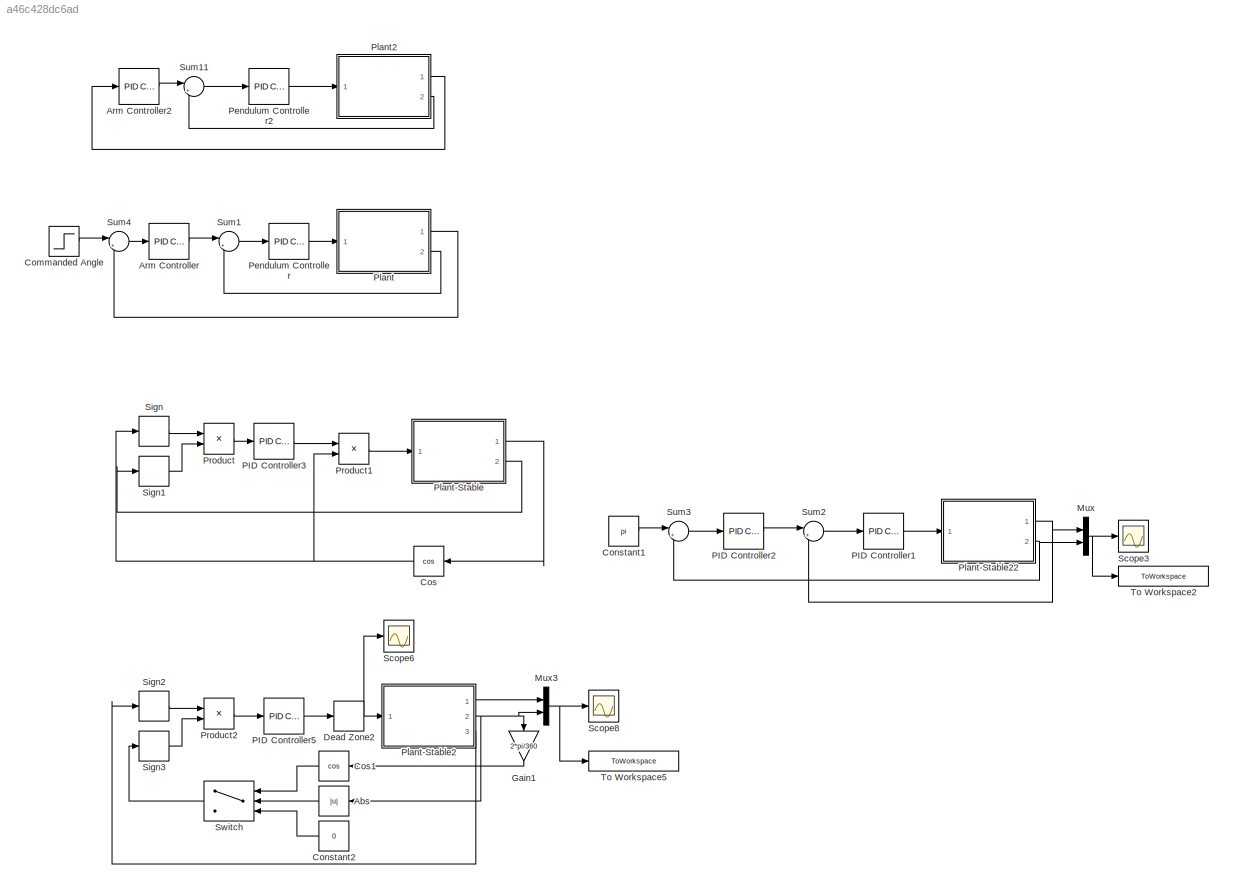
MODEL slx_a46c428dc6ad
KIND model
CONFIG AbsTol = auto
CONFIG EnableMultiTasking = off
CONFIG FixedStep = auto
CONFIG MaxStep = 0.03
CONFIG MinStep = auto
CONFIG RelTol = 1
CONFIG SampleTimeConstraint = Unconstrained
CONFIG SolverName = ode23
CONFIG StartTime = 0.0
CONFIG StopTime = 10
BLOCK [Abs] Abs
  SaturateOnIntegerOverflow = off
BLOCK [Reference] Arm Controller  REF=pid_lib/PID Controller
  Ports = [1, 1]
  SourceBlock = pid_lib/PID Controller
  SourceProductBaseCode = SL
  SourceType = PID 1dof
BLOCK [Reference] Arm Controller2  REF=pid_lib/PID Controller
  Ports = [1, 1]
  SourceBlock = pid_lib/PID Controller
  SourceProductBaseCode = SL
  SourceType = PID 1dof
BLOCK [Step] Commanded Angle
  SampleTime = 0
BLOCK [Constant] Constant1
  Value = pi
BLOCK [Constant] Constant2
  Value = 0
BLOCK [Trigonometry] Cos
  Operator = cos
  Ports = [1, 1]
BLOCK [Trigonometry] Cos1
  Operator = cos
  Ports = [1, 1]
BLOCK [DeadZone] Dead Zone2
  LowerValue = -2.2
  UpperValue = 2.2
BLOCK [Gain] Gain1
  Gain = 2*pi/360
  NameLocation = left
BLOCK [Mux] Mux
  DisplayOption = bar
  Inputs = 2
  Ports = [2, 1]
BLOCK [Mux] Mux3
  DisplayOption = bar
  Inputs = 2
  Ports = [2, 1]
BLOCK [Reference] PID Controller1  REF=pid_lib/PID Controller
  Ports = [1, 1]
  SourceBlock = pid_lib/PID Controller
  SourceProductBaseCode = SL
  SourceType = PID 1dof
BLOCK [Reference] PID Controller2  REF=pid_lib/PID Controller
  Ports = [1, 1]
  SourceBlock = pid_lib/PID Controller
  SourceProductBaseCode = SL
  SourceType = PID 1dof
BLOCK [Reference] PID Controller3  REF=pid_lib/PID Controller
  Ports = [1, 1]
  SourceBlock = pid_lib/PID Controller
  SourceProductBaseCode = SL
  SourceType = PID 1dof
BLOCK [Reference] PID Controller5  REF=pid_lib/PID Controller
  Ports = [1, 1]
  SourceBlock = pid_lib/PID Controller
  SourceProductBaseCode = SL
  SourceType = PID 1dof
BLOCK [Reference] Pendulum Controller  REF=pid_lib/PID Controller
  Ports = [1, 1]
  SourceBlock = pid_lib/PID Controller
  SourceProductBaseCode = SL
  SourceType = PID 1dof
BLOCK [Reference] Pendulum Controller2  REF=pid_lib/PID Controller
  Ports = [1, 1]
  SourceBlock = pid_lib/PID Controller
  SourceProductBaseCode = SL
  SourceType = PID 1dof
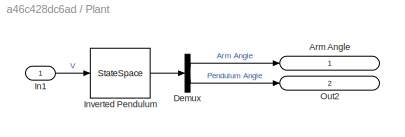
BLOCK [SubSystem] Plant
  Ports = [1, 2]
  RequestExecContextInheritance = off
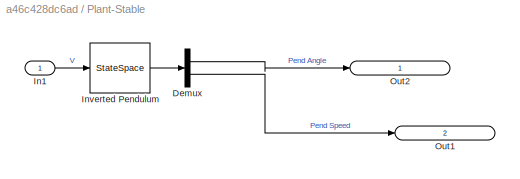
BLOCK [SubSystem] Plant-Stable
  Ports = [1, 2]
  RequestExecContextInheritance = off
BLOCK [Demux] Plant-Stable/Demux
  Outputs = 2
  Ports = [1, 2]
BLOCK [Inport] Plant-Stable/In1
  IconDisplay = Signal name
BLOCK [StateSpace] Plant-Stable/Inverted Pendulum
  A = A1
  B = B1
  C = C2
  D = D2
  InitialCondition = [0, 1, 0, 0]
  Ports = [1, 1]
BLOCK [Outport] Plant-Stable/Out1
  IconDisplay = Signal name
  Port = 2
BLOCK [Outport] Plant-Stable/Out2
  IconDisplay = Signal name
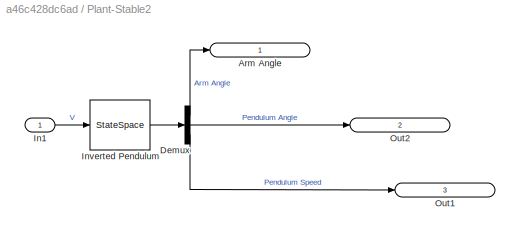
BLOCK [SubSystem] Plant-Stable2
  Ports = [1, 3]
  RequestExecContextInheritance = off
BLOCK [Outport] Plant-Stable2/Arm Angle
  IconDisplay = Signal name
BLOCK [Demux] Plant-Stable2/Demux
  Outputs = 3
  Ports = [1, 3]
BLOCK [Inport] Plant-Stable2/In1
  IconDisplay = Signal name
BLOCK [StateSpace] Plant-Stable2/Inverted Pendulum
  A = A1
  B = B1
  C = C2
  D = D2
  InitialCondition = [0, 1, 0, 0]
  Ports = [1, 1]
BLOCK [Outport] Plant-Stable2/Out1
  IconDisplay = Signal name
  Port = 3
BLOCK [Outport] Plant-Stable2/Out2
  IconDisplay = Signal name
  Port = 2
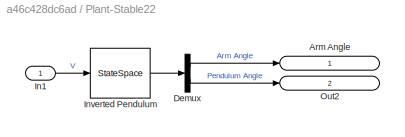
BLOCK [SubSystem] Plant-Stable22
  Ports = [1, 2]
  RequestExecContextInheritance = off
BLOCK [Outport] Plant-Stable22/Arm Angle
  IconDisplay = Signal name
BLOCK [Demux] Plant-Stable22/Demux
  Outputs = 2
  Ports = [1, 2]
BLOCK [Inport] Plant-Stable22/In1
  IconDisplay = Signal name
BLOCK [StateSpace] Plant-Stable22/Inverted Pendulum
  A = A1
  B = B1
  C = C1
  D = D1
  InitialCondition = [0, 0, 0, 0]
  Ports = [1, 1]
BLOCK [Outport] Plant-Stable22/Out2
  IconDisplay = Signal name
  Port = 2
BLOCK [Outport] Plant/Arm Angle
  IconDisplay = Signal name
BLOCK [Demux] Plant/Demux
  Outputs = 2
  Ports = [1, 2]
BLOCK [Inport] Plant/In1
  IconDisplay = Signal name
BLOCK [StateSpace] Plant/Inverted Pendulum
  A = A
  B = B
  C = C
  D = D
  InitialCondition = [0, 0.25, 0, 0]
  Ports = [1, 1]
BLOCK [Outport] Plant/Out2
  IconDisplay = Signal name
  Port = 2
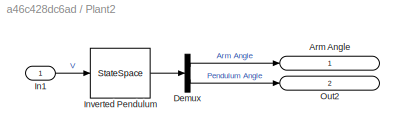
BLOCK [SubSystem] Plant2
  Ports = [1, 2]
  RequestExecContextInheritance = off
BLOCK [Outport] Plant2/Arm Angle
  IconDisplay = Signal name
BLOCK [Demux] Plant2/Demux
  Outputs = 2
  Ports = [1, 2]
BLOCK [Inport] Plant2/In1
  IconDisplay = Signal name
BLOCK [StateSpace] Plant2/Inverted Pendulum
  A = A
  B = B
  C = C
  D = D
  InitialCondition = [0, 0.25, 0, 0]
  Ports = [1, 1]
BLOCK [Outport] Plant2/Out2
  IconDisplay = Signal name
  Port = 2
BLOCK [Product] Product
  Ports = [2, 1]
BLOCK [Product] Product1
  Ports = [2, 1]
BLOCK [Product] Product2
  Ports = [2, 1]
BLOCK [Scope] Scope3
  Floating = off
  NumInputPorts = 1
  Ports = [1]
  ScopeSpecificationString = Simulink.scopes.TimeScopeBlockCfg('CurrentConfiguration', extmgr.ConfigurationSet(extmgr.Configuration('Core','General UI',true),extmgr.Configuration('Core','Source UI',true),extmgr.Configuration('Sources','WiredSimulink',true,'DataLoggingVariableName','ScopeData1'),extmgr.Configuration('Visuals','Time Domain',true,'SerializedDisplays',{struct('MinYLimReal','-176.07721','MaxYLimReal','162.60604','...<+1494ch>
BLOCK [Scope] Scope6
  Floating = off
  NumInputPorts = 1
  Ports = [1]
  ScopeSpecificationString = Simulink.scopes.TimeScopeBlockCfg('CurrentConfiguration', extmgr.ConfigurationSet(extmgr.Configuration('Core','General UI',true),extmgr.Configuration('Core','Source UI',true),extmgr.Configuration('Sources','WiredSimulink',true,'DataLoggingVariableName','ScopeData3'),extmgr.Configuration('Visuals','Time Domain',true,'SerializedDisplays',{struct('MinYLimReal','-1.00000','MaxYLimReal','1.00000','YLab...<+1450ch>
BLOCK [Scope] Scope8
  Floating = off
  NumInputPorts = 1
  Ports = [1]
  ScopeSpecificationString = Simulink.scopes.TimeScopeBlockCfg('CurrentConfiguration', extmgr.ConfigurationSet(extmgr.Configuration('Core','General UI',true),extmgr.Configuration('Core','Source UI',true),extmgr.Configuration('Sources','WiredSimulink',true,'DataLoggingVariableName','ScopeData4'),extmgr.Configuration('Visuals','Time Domain',true,'SerializedDisplays',{struct('MinYLimReal','-294.43398','MaxYLimReal','194.54613','...<+1496ch>
BLOCK [Signum] Sign
BLOCK [Signum] Sign1
BLOCK [Signum] Sign2
BLOCK [Signum] Sign3
BLOCK [Sum] Sum1
  Inputs = |+-
  Ports = [2, 1]
BLOCK [Sum] Sum11
  Inputs = |+-
  Ports = [2, 1]
BLOCK [Sum] Sum2
  Inputs = |+-
  Ports = [2, 1]
BLOCK [Sum] Sum3
  Inputs = |+-
  Ports = [2, 1]
BLOCK [Sum] Sum4
  Inputs = |+-
  Ports = [2, 1]
BLOCK [Switch] Switch
  Criteria = u2 > Threshold
  InputSameDT = off
  SaturateOnIntegerOverflow = off
  Threshold = 1
BLOCK [ToWorkspace] To Workspace2
  FixptAsFi = on
  MaxDataPoints = inf
  Ports = [1]
  SampleTime = -1
  SaveFormat = Timeseries
  VariableName = swingup
BLOCK [ToWorkspace] To Workspace5
  FixptAsFi = on
  MaxDataPoints = inf
  Ports = [1]
  SampleTime = -1
  SaveFormat = Timeseries
  VariableName = swingdown2
LINE Abs:1 -> Switch:2
LINE Arm Controller2:1 -> Sum11:1
LINE Arm Controller:1 -> Sum1:1
LINE Commanded Angle:1 -> Sum4:1
LINE Constant1:1 -> Sum3:1
LINE Constant2:1 -> Switch:3
LINE Cos1:1 -> Switch:1
NET Cos:1 -> Product1:2, Sign:1
NET Dead Zone2:1 -> Plant-Stable2:1, Scope6:1
LINE Gain1:1 -> Cos1:1
NET Mux3:1 -> Scope8:1, To Workspace5:1
NET Mux:1 -> Scope3:1, To Workspace2:1
LINE PID Controller1:1 -> Plant-Stable22:1
LINE PID Controller2:1 -> Sum2:1
LINE PID Controller3:1 -> Product1:1
LINE PID Controller5:1 -> Dead Zone2:1
LINE Pendulum Controller2:1 -> Plant2:1
LINE Pendulum Controller:1 -> Plant:1
LINE Plant-Stable/Demux:1 -> Plant-Stable/Out2:1
LINE Plant-Stable/Demux:2 -> Plant-Stable/Out1:1
LINE Plant-Stable/In1:1 -> Plant-Stable/Inverted Pendulum:1
LINE Plant-Stable/Inverted Pendulum:1 -> Plant-Stable/Demux:1
LINE Plant-Stable2/Demux:1 -> Plant-Stable2/Arm Angle:1
LINE Plant-Stable2/Demux:2 -> Plant-Stable2/Out2:1
LINE Plant-Stable2/Demux:3 -> Plant-Stable2/Out1:1
LINE Plant-Stable2/In1:1 -> Plant-Stable2/Inverted Pendulum:1
LINE Plant-Stable2/Inverted Pendulum:1 -> Plant-Stable2/Demux:1
LINE Plant-Stable22/Demux:1 -> Plant-Stable22/Arm Angle:1
LINE Plant-Stable22/Demux:2 -> Plant-Stable22/Out2:1
LINE Plant-Stable22/In1:1 -> Plant-Stable22/Inverted Pendulum:1
LINE Plant-Stable22/Inverted Pendulum:1 -> Plant-Stable22/Demux:1
NET Plant-Stable22:1 -> Mux:1, Sum2:2
NET Plant-Stable22:2 -> Mux:2, Sum3:2
LINE Plant-Stable2:1 -> Mux3:1
NET Plant-Stable2:2 -> Abs:1, Gain1:1, Mux3:2
LINE Plant-Stable2:3 -> Sign2:1
LINE Plant-Stable:1 -> Cos:1
LINE Plant-Stable:2 -> Sign1:1
LINE Plant/Demux:1 -> Plant/Arm Angle:1
LINE Plant/Demux:2 -> Plant/Out2:1
LINE Plant/In1:1 -> Plant/Inverted Pendulum:1
LINE Plant/Inverted Pendulum:1 -> Plant/Demux:1
LINE Plant2/Demux:1 -> Plant2/Arm Angle:1
LINE Plant2/Demux:2 -> Plant2/Out2:1
LINE Plant2/In1:1 -> Plant2/Inverted Pendulum:1
LINE Plant2/Inverted Pendulum:1 -> Plant2/Demux:1
LINE Plant2:1 -> Arm Controller2:1
LINE Plant2:2 -> Sum11:2
LINE Plant:1 -> Sum4:2
LINE Plant:2 -> Sum1:2
LINE Product1:1 -> Plant-Stable:1
LINE Product2:1 -> PID Controller5:1
LINE Product:1 -> PID Controller3:1
LINE Sign1:1 -> Product:2
LINE Sign2:1 -> Product2:1
LINE Sign3:1 -> Product2:2
LINE Sign:1 -> Product:1
LINE Sum11:1 -> Pendulum Controller2:1
LINE Sum1:1 -> Pendulum Controller:1
LINE Sum2:1 -> PID Controller1:1
LINE Sum3:1 -> PID Controller2:1
LINE Sum4:1 -> Arm Controller:1
LINE Switch:1 -> Sign3:1
note: NET lines group one-source signal fan-out (src -> all destinations, sorted); 1:1 wires keep LINE
